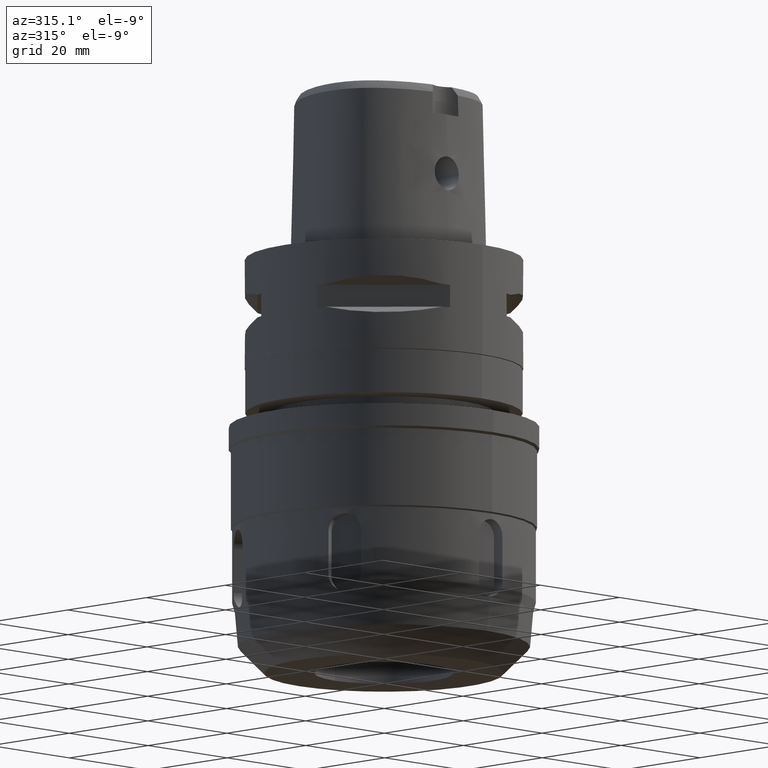
[diagram: clean part render]
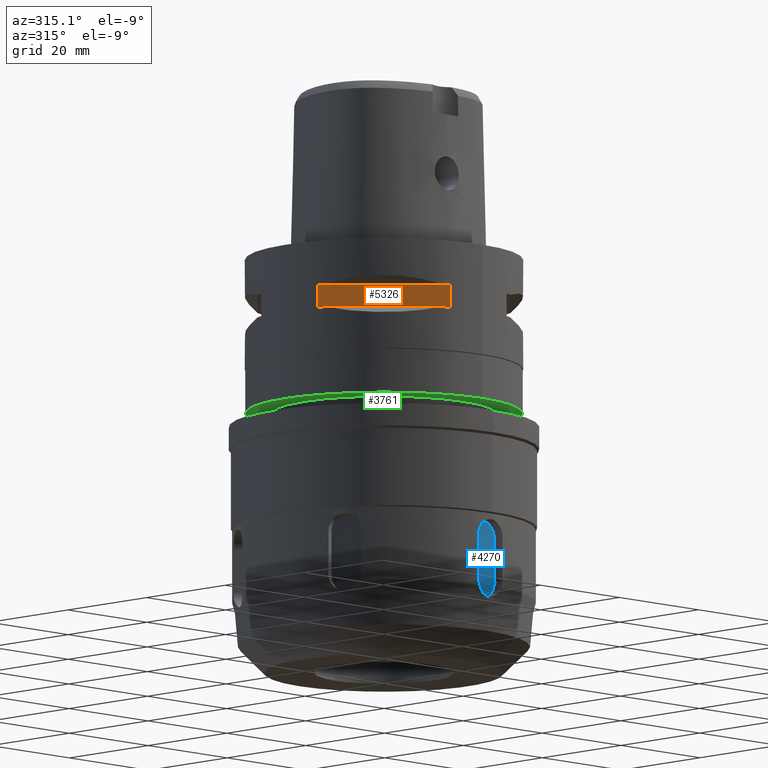
[diagram: same view with three faces highlighted in distinct colors, each labeled with its STEP entity id]
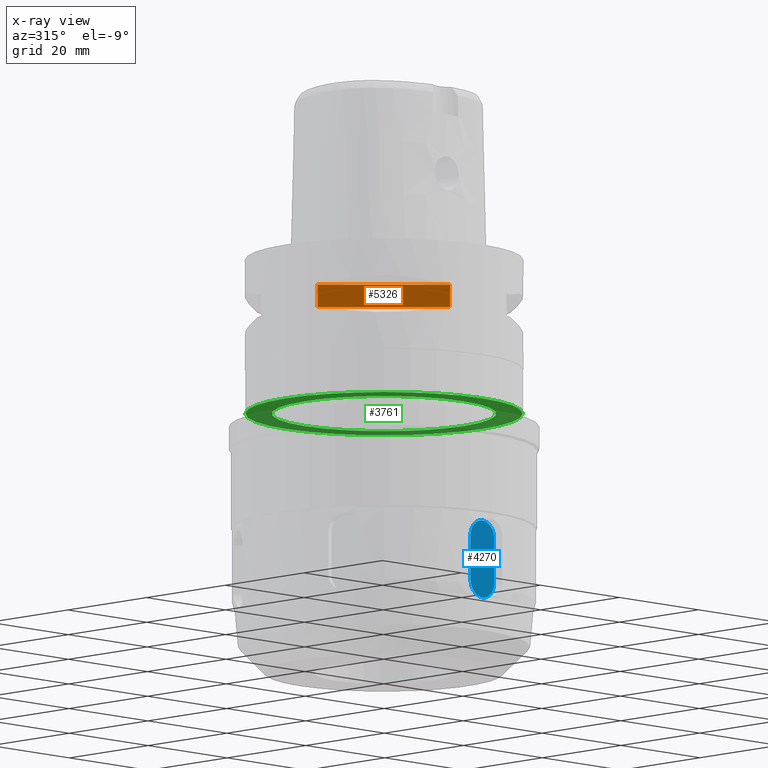
[diagram: x-ray of the same camera — body ghosted, the three highlighted faces saturated]
A machine part, auxiliary view with three faces highlighted in distinct colors.
The next image is the same camera in x-ray (body ghosted, the three faces saturated) — at least one of them is partly hidden behind the body in this view.
Their STEP definitions:

[orange] entity #5326 — the highlighted planar face has unit normal (0.7071, 0.7071, 0).
#414=DIRECTION('',(0.E0,0.E0,-1.E0));
#415=VECTOR('',#414,4.1E0);
#416=CARTESIAN_POINT('',(-2.395277699798E1,-7.159921374231E0,-7.95E0));
#417=LINE('',#416,#415);
#432=DIRECTION('',(0.E0,0.E0,1.E0));
#433=VECTOR('',#432,4.1E0);
#434=CARTESIAN_POINT('',(-7.159921374231E0,-2.395277699798E1,-1.205E1));
#435=LINE('',#434,#433);
#2595=DIRECTION('',(7.071067811865E-1,-7.071067811865E-1,0.E0));
#2596=VECTOR('',#2595,2.374868417407E1);
#2597=CARTESIAN_POINT('',(-2.395277699798E1,-7.159921374231E0,-7.95E0));
#2598=LINE('',#2597,#2596);
#2618=DIRECTION('',(7.071067811865E-1,-7.071067811865E-1,0.E0));
#2619=VECTOR('',#2618,2.374868417407E1);
#2620=CARTESIAN_POINT('',(-2.395277699798E1,-7.159921374231E0,-1.205E1));
#2621=LINE('',#2620,#2619);
#2677=CARTESIAN_POINT('',(-2.395277699798E1,-7.159921374235E0,-7.95E0));
#2678=VERTEX_POINT('',#2677);
#2679=CARTESIAN_POINT('',(-2.395277699798E1,-7.159921374231E0,-1.205E1));
#2680=VERTEX_POINT('',#2679);
#2684=CARTESIAN_POINT('',(-7.159921374235E0,-2.395277699798E1,-1.205E1));
#2685=VERTEX_POINT('',#2684);
#2686=CARTESIAN_POINT('',(-7.159921374231E0,-2.395277699798E1,-7.95E0));
#2687=VERTEX_POINT('',#2686);
#5314=CARTESIAN_POINT('',(-4.949747468306E0,-2.616295090390E1,-7.95E0));
#5315=DIRECTION('',(7.071067811865E-1,7.071067811865E-1,0.E0));
#5316=DIRECTION('',(0.E0,0.E0,-1.E0));
#5317=AXIS2_PLACEMENT_3D('',#5314,#5315,#5316);
#5318=PLANE('',#5317);
#5319=ORIENTED_EDGE('',*,*,#3634,.F.);
#5321=ORIENTED_EDGE('',*,*,#5320,.F.);
#5322=ORIENTED_EDGE('',*,*,#3626,.F.);
#5323=ORIENTED_EDGE('',*,*,#5307,.T.);
#5324=EDGE_LOOP('',(#5319,#5321,#5322,#5323));
#5325=FACE_OUTER_BOUND('',#5324,.F.);
#3626=EDGE_CURVE('',#2678,#2680,#417,.T.);
#3634=EDGE_CURVE('',#2685,#2687,#435,.T.);
#5307=EDGE_CURVE('',#2678,#2687,#2598,.T.);
#5320=EDGE_CURVE('',#2680,#2685,#2621,.T.);
#5326=ADVANCED_FACE('',(#5325),#5318,.F.);

[blue] entity #4270 — the highlighted planar face has unit normal (0, -1, 0).
#1448=CARTESIAN_POINT('',(0.E0,-2.5E1,-5.31E1));
#1449=DIRECTION('',(0.E0,1.E0,0.E0));
#1450=DIRECTION('',(-1.E0,0.E0,0.E0));
#1451=AXIS2_PLACEMENT_3D('',#1448,#1449,#1450);
#1456=CARTESIAN_POINT('',(0.E0,-2.5E1,-5.31E1));
#1457=DIRECTION('',(0.E0,1.E0,0.E0));
#1458=DIRECTION('',(0.E0,0.E0,1.E0));
#1459=AXIS2_PLACEMENT_3D('',#1456,#1457,#1458);
#1464=DIRECTION('',(0.E0,0.E0,-1.E0));
#1465=VECTOR('',#1464,8.E0);
#1466=CARTESIAN_POINT('',(3.E0,-2.5E1,-5.31E1));
#1467=LINE('',#1466,#1465);
#1471=CARTESIAN_POINT('',(0.E0,-2.5E1,-6.11E1));
#1472=DIRECTION('',(0.E0,1.E0,0.E0));
#1473=DIRECTION('',(1.E0,0.E0,0.E0));
#1474=AXIS2_PLACEMENT_3D('',#1471,#1472,#1473);
#1479=CARTESIAN_POINT('',(0.E0,-2.5E1,-6.11E1));
#1480=DIRECTION('',(0.E0,1.E0,0.E0));
#1481=DIRECTION('',(0.E0,0.E0,-1.E0));
#1482=AXIS2_PLACEMENT_3D('',#1479,#1480,#1481);
#1487=DIRECTION('',(0.E0,0.E0,1.E0));
#1488=VECTOR('',#1487,8.E0);
#1489=CARTESIAN_POINT('',(-3.E0,-2.5E1,-6.11E1));
#1490=LINE('',#1489,#1488);
#2782=CARTESIAN_POINT('',(3.E0,-2.5E1,-5.31E1));
#2783=VERTEX_POINT('',#2782);
#2784=CARTESIAN_POINT('',(0.E0,-2.5E1,-5.01E1));
#2785=VERTEX_POINT('',#2784);
#2786=CARTESIAN_POINT('',(-3.E0,-2.5E1,-5.31E1));
#2787=VERTEX_POINT('',#2786);
#2846=CARTESIAN_POINT('',(-3.E0,-2.5E1,-6.11E1));
#2847=VERTEX_POINT('',#2846);
#2848=CARTESIAN_POINT('',(0.E0,-2.5E1,-6.41E1));
#2849=VERTEX_POINT('',#2848);
#2850=CARTESIAN_POINT('',(3.E0,-2.5E1,-6.11E1));
#2851=VERTEX_POINT('',#2850);
#4256=CARTESIAN_POINT('',(0.E0,-2.5E1,0.E0));
#4257=DIRECTION('',(0.E0,-1.E0,0.E0));
#4258=DIRECTION('',(0.E0,0.E0,-1.E0));
#4259=AXIS2_PLACEMENT_3D('',#4256,#4257,#4258);
#4260=PLANE('',#4259);
#4261=ORIENTED_EDGE('',*,*,#3984,.T.);
#4262=ORIENTED_EDGE('',*,*,#3982,.T.);
#4264=ORIENTED_EDGE('',*,*,#4263,.T.);
#4265=ORIENTED_EDGE('',*,*,#4235,.T.);
#4266=ORIENTED_EDGE('',*,*,#4233,.T.);
#4267=ORIENTED_EDGE('',*,*,#4250,.T.);
#4268=EDGE_LOOP('',(#4261,#4262,#4264,#4265,#4266,#4267));
#4269=FACE_OUTER_BOUND('',#4268,.F.);
#1452=CIRCLE('',#1451,3.E0);
#1460=CIRCLE('',#1459,3.E0);
#1475=CIRCLE('',#1474,3.E0);
#1483=CIRCLE('',#1482,3.E0);
#3982=EDGE_CURVE('',#2785,#2783,#1460,.T.);
#3984=EDGE_CURVE('',#2787,#2785,#1452,.T.);
#4233=EDGE_CURVE('',#2849,#2847,#1483,.T.);
#4235=EDGE_CURVE('',#2851,#2849,#1475,.T.);
#4250=EDGE_CURVE('',#2847,#2787,#1490,.T.);
#4263=EDGE_CURVE('',#2783,#2851,#1467,.T.);
#4270=ADVANCED_FACE('',(#4269),#4260,.T.);

[green] entity #3761 — the highlighted planar face has unit normal (0, 0, -1).
#556=CARTESIAN_POINT('',(0.E0,1.270571054115E-14,-2.79E1));
#557=DIRECTION('',(0.E0,0.E0,1.E0));
#558=DIRECTION('',(0.E0,-1.E0,0.E0));
#559=AXIS2_PLACEMENT_3D('',#556,#557,#558);
#564=CARTESIAN_POINT('',(0.E0,1.270571054115E-14,-2.79E1));
#565=DIRECTION('',(0.E0,0.E0,1.E0));
#566=DIRECTION('',(0.E0,1.E0,0.E0));
#567=AXIS2_PLACEMENT_3D('',#564,#565,#566);
#572=CARTESIAN_POINT('',(0.E0,1.270571054115E-14,-2.79E1));
#573=DIRECTION('',(0.E0,0.E0,-1.E0));
#574=DIRECTION('',(0.E0,-1.E0,0.E0));
#575=AXIS2_PLACEMENT_3D('',#572,#573,#574);
#580=CARTESIAN_POINT('',(0.E0,1.270571054115E-14,-2.79E1));
#581=DIRECTION('',(0.E0,0.E0,-1.E0));
#582=DIRECTION('',(0.E0,1.E0,0.E0));
#583=AXIS2_PLACEMENT_3D('',#580,#581,#582);
#2718=CARTESIAN_POINT('',(0.E0,2.49E1,-2.79E1));
#2719=VERTEX_POINT('',#2718);
#2720=CARTESIAN_POINT('',(0.E0,-2.49E1,-2.79E1));
#2721=VERTEX_POINT('',#2720);
#2722=CARTESIAN_POINT('',(0.E0,-2.015E1,-2.79E1));
#2723=CARTESIAN_POINT('',(0.E0,2.015E1,-2.79E1));
#2724=VERTEX_POINT('',#2722);
#2725=VERTEX_POINT('',#2723);
#3746=CARTESIAN_POINT('',(0.E0,0.E0,-2.79E1));
#3747=DIRECTION('',(0.E0,0.E0,-1.E0));
#3748=DIRECTION('',(0.E0,-1.E0,0.E0));
#3749=AXIS2_PLACEMENT_3D('',#3746,#3747,#3748);
#3750=PLANE('',#3749);
#3751=ORIENTED_EDGE('',*,*,#3739,.T.);
#3752=ORIENTED_EDGE('',*,*,#3728,.T.);
#3753=EDGE_LOOP('',(#3751,#3752));
#3754=FACE_OUTER_BOUND('',#3753,.F.);
#3756=ORIENTED_EDGE('',*,*,#3755,.T.);
#3758=ORIENTED_EDGE('',*,*,#3757,.T.);
#3759=EDGE_LOOP('',(#3756,#3758));
#3760=FACE_BOUND('',#3759,.F.);
#560=CIRCLE('',#559,2.49E1);
#568=CIRCLE('',#567,2.49E1);
#576=CIRCLE('',#575,2.015E1);
#584=CIRCLE('',#583,2.015E1);
#3728=EDGE_CURVE('',#2719,#2721,#568,.T.);
#3739=EDGE_CURVE('',#2721,#2719,#560,.T.);
#3755=EDGE_CURVE('',#2724,#2725,#576,.T.);
#3757=EDGE_CURVE('',#2725,#2724,#584,.T.);
#3761=ADVANCED_FACE('',(#3754,#3760),#3750,.T.);